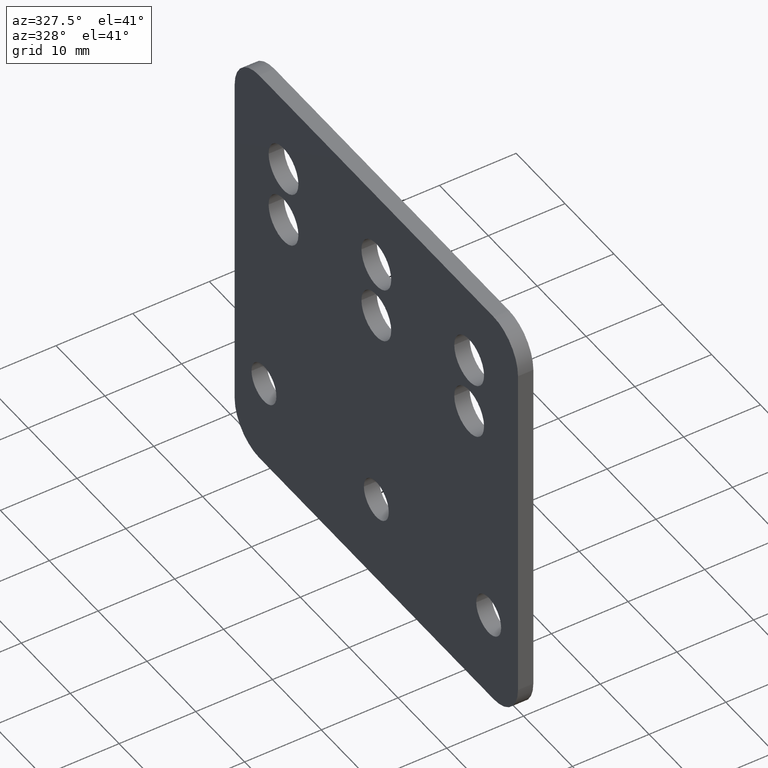
[diagram: clean part render]
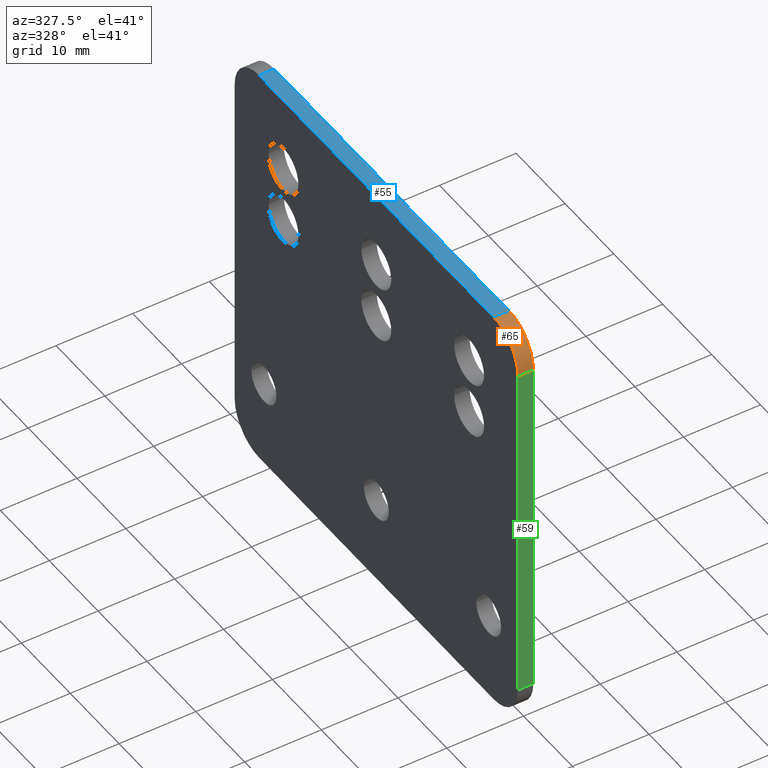
[diagram: same view with three faces highlighted in distinct colors, each labeled with its STEP entity id]
A machine part, auxiliary view with three faces highlighted in distinct colors.
Their STEP definitions:

[orange] entity #65 — the highlighted cylindrical surface (partial cylindrical patch) has radius 5 mm, axis along (1, 0, 0).
#65=ADVANCED_FACE('',(#147),#148,.T.);
#147=FACE_OUTER_BOUND('',#238,.T.);
#148=CYLINDRICAL_SURFACE('',#239,5.0);
#238=EDGE_LOOP('',(#361,#362,#363,#364));
#239=AXIS2_PLACEMENT_3D('',#365,#366,#367);
#361=ORIENTED_EDGE('',*,*,#473,.T.);
#362=ORIENTED_EDGE('',*,*,#457,.F.);
#363=ORIENTED_EDGE('',*,*,#477,.F.);
#364=ORIENTED_EDGE('',*,*,#463,.T.);
#365=CARTESIAN_POINT('',(-1.99999999999978,-47.0000000000033,39.1999999999983));
#366=DIRECTION('',(1.0,0.0,0.0));
#367=DIRECTION('',(0.0,1.0,0.0));
#457=EDGE_CURVE('',#534,#529,#536,.T.);
#463=EDGE_CURVE('',#545,#543,#546,.T.);
#473=EDGE_CURVE('',#543,#529,#562,.T.);
#477=EDGE_CURVE('',#545,#534,#567,.T.);
#529=VERTEX_POINT('',#626);
#534=VERTEX_POINT('',#633);
#536=LINE('',#636,#637);
#543=VERTEX_POINT('',#644);
#545=VERTEX_POINT('',#647);
#546=LINE('',#648,#649);
#562=CIRCLE('',#668,5.0);
#567=CIRCLE('',#673,5.0);
#626=CARTESIAN_POINT('',(0.0,-47.0000000000033,44.1999999999982));
#633=CARTESIAN_POINT('',(-1.99999999999978,-47.0000000000033,44.1999999999982));
#636=CARTESIAN_POINT('',(-1.99999999999978,-47.0000000000033,44.1999999999982));
#637=VECTOR('',#741,1.0);
#644=CARTESIAN_POINT('',(0.0,-52.0000000000032,39.1999999999983));
#647=CARTESIAN_POINT('',(-1.99999999999978,-52.0000000000032,39.1999999999983));
#648=CARTESIAN_POINT('',(-1.99999999999978,-52.0000000000032,39.1999999999983));
#649=VECTOR('',#749,1.0);
#668=AXIS2_PLACEMENT_3D('',#768,#769,#770);
#673=AXIS2_PLACEMENT_3D('',#774,#775,#776);
#741=DIRECTION('',(1.0,0.0,0.0));
#749=DIRECTION('',(1.0,0.0,0.0));
#768=CARTESIAN_POINT('',(0.0,-47.0000000000033,39.1999999999983));
#769=DIRECTION('',(-1.0,0.0,0.0));
#770=DIRECTION('',(0.0,-1.0,0.0));
#774=CARTESIAN_POINT('',(-1.99999999999978,-47.0000000000033,39.1999999999983));
#775=DIRECTION('',(-1.0,0.0,0.0));
#776=DIRECTION('',(0.0,-1.0,0.0));

[blue] entity #55 — the highlighted planar face has unit normal (0, 0, -1).
#55=ADVANCED_FACE('',(#121),#122,.F.);
#121=FACE_OUTER_BOUND('',#212,.T.);
#122=PLANE('',#213);
#212=EDGE_LOOP('',(#312,#313,#314,#315));
#213=AXIS2_PLACEMENT_3D('',#316,#317,#318);
#312=ORIENTED_EDGE('',*,*,#454,.T.);
#313=ORIENTED_EDGE('',*,*,#455,.F.);
#314=ORIENTED_EDGE('',*,*,#456,.F.);
#315=ORIENTED_EDGE('',*,*,#457,.T.);
#316=CARTESIAN_POINT('',(-1.99999999999978,-47.0000000000033,44.1999999999982));
#317=DIRECTION('',(0.0,0.0,-1.0));
#318=DIRECTION('',(1.0,0.0,0.0));
#454=EDGE_CURVE('',#529,#530,#531,.T.);
#455=EDGE_CURVE('',#532,#530,#533,.T.);
#456=EDGE_CURVE('',#534,#532,#535,.T.);
#457=EDGE_CURVE('',#534,#529,#536,.T.);
#529=VERTEX_POINT('',#626);
#530=VERTEX_POINT('',#627);
#531=LINE('',#628,#629);
#532=VERTEX_POINT('',#630);
#533=LINE('',#631,#632);
#534=VERTEX_POINT('',#633);
#535=LINE('',#634,#635);
#536=LINE('',#636,#637);
#626=CARTESIAN_POINT('',(0.0,-47.0000000000033,44.1999999999982));
#627=CARTESIAN_POINT('',(0.0,0.999999999996746,44.1999999999982));
#628=CARTESIAN_POINT('',(0.0,-47.0000000000033,44.1999999999982));
#629=VECTOR('',#738,1.0);
#630=CARTESIAN_POINT('',(-1.99999999999978,0.999999999996746,44.1999999999982));
#631=CARTESIAN_POINT('',(-1.99999999999978,0.999999999996746,44.1999999999982));
#632=VECTOR('',#739,1.0);
#633=CARTESIAN_POINT('',(-1.99999999999978,-47.0000000000033,44.1999999999982));
#634=CARTESIAN_POINT('',(-1.99999999999978,-47.0000000000033,44.1999999999982));
#635=VECTOR('',#740,1.0);
#636=CARTESIAN_POINT('',(-1.99999999999978,-47.0000000000033,44.1999999999982));
#637=VECTOR('',#741,1.0);
#738=DIRECTION('',(0.0,1.0,0.0));
#739=DIRECTION('',(1.0,0.0,0.0));
#740=DIRECTION('',(0.0,1.0,0.0));
#741=DIRECTION('',(1.0,0.0,0.0));

[green] entity #59 — the highlighted planar face has unit normal (0, 1, 0).
#59=ADVANCED_FACE('',(#128),#129,.F.);
#128=FACE_OUTER_BOUND('',#219,.T.);
#129=PLANE('',#220);
#219=EDGE_LOOP('',(#326,#327,#328,#329));
#220=AXIS2_PLACEMENT_3D('',#330,#331,#332);
#326=ORIENTED_EDGE('',*,*,#462,.T.);
#327=ORIENTED_EDGE('',*,*,#463,.F.);
#328=ORIENTED_EDGE('',*,*,#464,.F.);
#329=ORIENTED_EDGE('',*,*,#438,.T.);
#330=CARTESIAN_POINT('',(-1.99999999999978,-52.0000000000032,-6.50000000000175));
#331=DIRECTION('',(0.0,1.0,0.0));
#332=DIRECTION('',(-1.0,0.0,0.0));
#438=EDGE_CURVE('',#503,#501,#504,.T.);
#462=EDGE_CURVE('',#501,#543,#544,.T.);
#463=EDGE_CURVE('',#545,#543,#546,.T.);
#464=EDGE_CURVE('',#503,#545,#547,.T.);
#501=VERTEX_POINT('',#596);
#503=VERTEX_POINT('',#598);
#504=LINE('',#599,#600);
#543=VERTEX_POINT('',#644);
#544=LINE('',#645,#646);
#545=VERTEX_POINT('',#647);
#546=LINE('',#648,#649);
#547=LINE('',#650,#651);
#596=CARTESIAN_POINT('',(0.0,-52.0000000000032,-6.50000000000175));
#598=CARTESIAN_POINT('',(-1.99999999999978,-52.0000000000032,-6.50000000000175));
#599=CARTESIAN_POINT('',(-1.99999999999978,-52.0000000000032,-6.50000000000175));
#600=VECTOR('',#709,1.0);
#644=CARTESIAN_POINT('',(0.0,-52.0000000000032,39.1999999999983));
#645=CARTESIAN_POINT('',(0.0,-52.0000000000032,-6.50000000000175));
#646=VECTOR('',#748,1.0);
#647=CARTESIAN_POINT('',(-1.99999999999978,-52.0000000000032,39.1999999999983));
#648=CARTESIAN_POINT('',(-1.99999999999978,-52.0000000000032,39.1999999999983));
#649=VECTOR('',#749,1.0);
#650=CARTESIAN_POINT('',(-1.99999999999978,-52.0000000000032,-6.50000000000175));
#651=VECTOR('',#750,1.0);
#709=DIRECTION('',(1.0,0.0,0.0));
#748=DIRECTION('',(0.0,0.0,1.0));
#749=DIRECTION('',(1.0,0.0,0.0));
#750=DIRECTION('',(0.0,0.0,1.0));